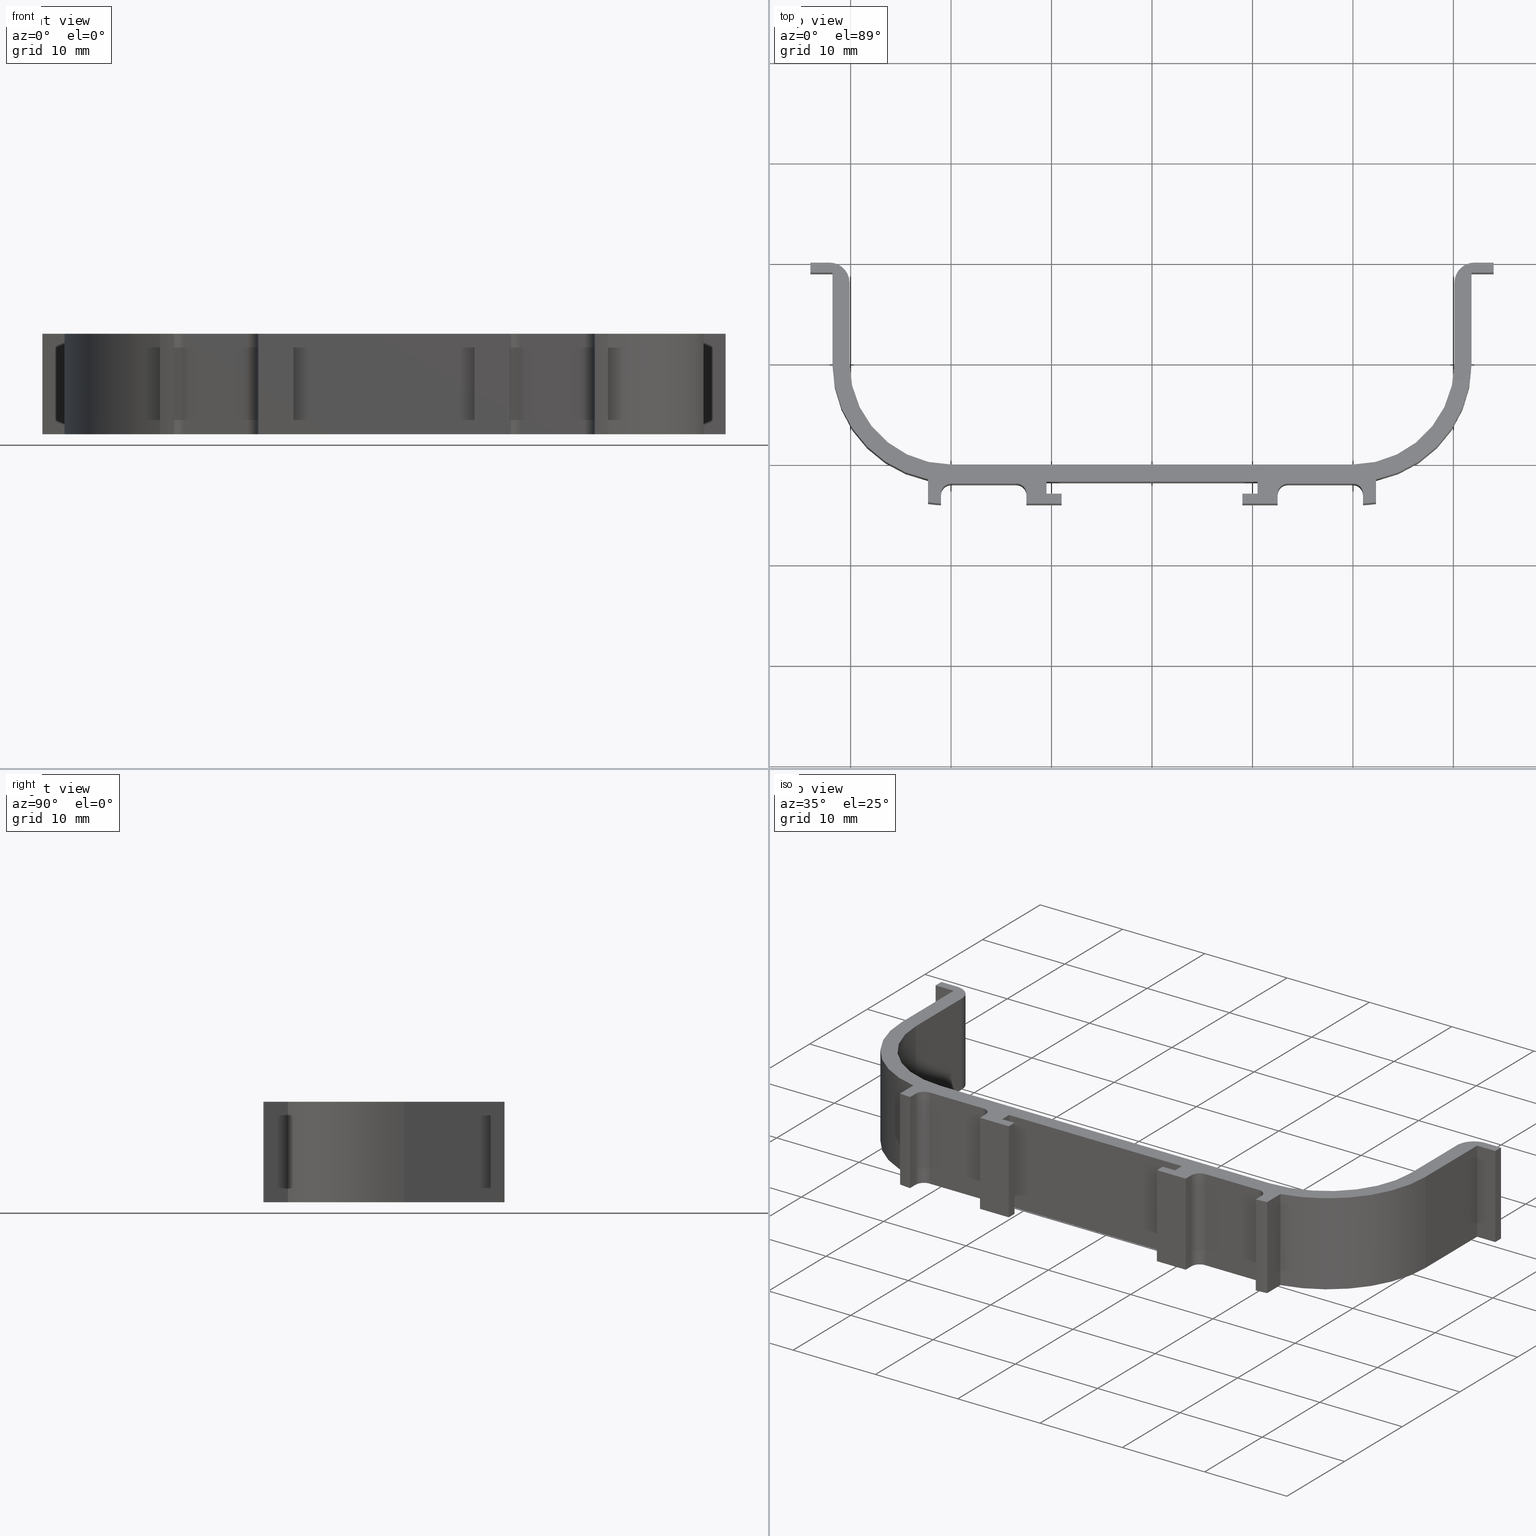
[diagram: canonical four-view strip — front | top / right | iso, engineering-drawing reading convention]
A machine part, canonical four-view strip (front | top / right | iso — engineering-drawing reading convention). The complete STEP part file that produces these views, byte-faithful:
ISO-10303-21;
HEADER;
/* Generated by software containing ST-Developer
 * from STEP Tools, Inc. (www.steptools.com) 
 */

FILE_DESCRIPTION(
/* description */ ('Griffmulde C-Form'),
/* implementation_level */ '2;1');

FILE_NAME(
/* name */ 'C:\\Users\\selema\\Desktop\\901013.stp',
/* time_stamp */ '2020-08-24T10:31:12+02:00',
/* author */ ('selema'),
/* organization */ (''),
/* preprocessor_version */ 'ST-DEVELOPER v15.6',
/* originating_system */ 'Autodesk Inventor 2015',
/* authorisation */ '');

FILE_SCHEMA (('AUTOMOTIVE_DESIGN { 1 0 10303 214 3 1 1 }'));
ENDSEC;

DATA;
#10=MECHANICAL_DESIGN_GEOMETRIC_PRESENTATION_REPRESENTATION('',(#13),#1383);
#11=SHAPE_REPRESENTATION_RELATIONSHIP('SRR','None',#1392,#12);
#12=ADVANCED_BREP_SHAPE_REPRESENTATION($,(#14),#1382);
#13=STYLED_ITEM('',(#1401),#14);
#14=MANIFOLD_SOLID_BREP('Volumenk\X\F6rper1',#839);
#15=PLANE('',#844);
#16=PLANE('',#856);
#17=PLANE('',#859);
#18=PLANE('',#860);
#19=PLANE('',#872);
#20=PLANE('',#874);
#21=PLANE('',#875);
#22=PLANE('',#876);
#23=PLANE('',#877);
#24=PLANE('',#879);
#25=PLANE('',#881);
#26=PLANE('',#882);
#27=PLANE('',#883);
#28=PLANE('',#884);
#29=PLANE('',#885);
#30=PLANE('',#887);
#31=PLANE('',#888);
#32=PLANE('',#891);
#33=PLANE('',#893);
#34=PLANE('',#894);
#35=PLANE('',#895);
#36=PLANE('',#896);
#37=PLANE('',#897);
#38=PLANE('',#899);
#39=PLANE('',#901);
#40=PLANE('',#902);
#41=PLANE('',#903);
#42=PLANE('',#904);
#43=PLANE('',#905);
#44=PLANE('',#906);
#45=FACE_OUTER_BOUND('',#87,.T.);
#46=FACE_OUTER_BOUND('',#88,.T.);
#47=FACE_OUTER_BOUND('',#89,.T.);
#48=FACE_OUTER_BOUND('',#90,.T.);
#49=FACE_OUTER_BOUND('',#91,.T.);
#50=FACE_OUTER_BOUND('',#92,.T.);
#51=FACE_OUTER_BOUND('',#93,.T.);
#52=FACE_OUTER_BOUND('',#94,.T.);
#53=FACE_OUTER_BOUND('',#95,.T.);
#54=FACE_OUTER_BOUND('',#96,.T.);
#55=FACE_OUTER_BOUND('',#97,.T.);
#56=FACE_OUTER_BOUND('',#98,.T.);
#57=FACE_OUTER_BOUND('',#99,.T.);
#58=FACE_OUTER_BOUND('',#100,.T.);
#59=FACE_OUTER_BOUND('',#101,.T.);
#60=FACE_OUTER_BOUND('',#102,.T.);
#61=FACE_OUTER_BOUND('',#103,.T.);
#62=FACE_OUTER_BOUND('',#104,.T.);
#63=FACE_OUTER_BOUND('',#105,.T.);
#64=FACE_OUTER_BOUND('',#106,.T.);
#65=FACE_OUTER_BOUND('',#107,.T.);
#66=FACE_OUTER_BOUND('',#108,.T.);
#67=FACE_OUTER_BOUND('',#109,.T.);
#68=FACE_OUTER_BOUND('',#110,.T.);
#69=FACE_OUTER_BOUND('',#111,.T.);
#70=FACE_OUTER_BOUND('',#112,.T.);
#71=FACE_OUTER_BOUND('',#113,.T.);
#72=FACE_OUTER_BOUND('',#114,.T.);
#73=FACE_OUTER_BOUND('',#115,.T.);
#74=FACE_OUTER_BOUND('',#116,.T.);
#75=FACE_OUTER_BOUND('',#117,.T.);
#76=FACE_OUTER_BOUND('',#118,.T.);
#77=FACE_OUTER_BOUND('',#119,.T.);
#78=FACE_OUTER_BOUND('',#120,.T.);
#79=FACE_OUTER_BOUND('',#121,.T.);
#80=FACE_OUTER_BOUND('',#122,.T.);
#81=FACE_OUTER_BOUND('',#123,.T.);
#82=FACE_OUTER_BOUND('',#124,.T.);
#83=FACE_OUTER_BOUND('',#125,.T.);
#84=FACE_OUTER_BOUND('',#126,.T.);
#85=FACE_OUTER_BOUND('',#127,.T.);
#86=FACE_OUTER_BOUND('',#128,.T.);
#87=EDGE_LOOP('',(#545,#546,#547,#548));
#88=EDGE_LOOP('',(#549,#550,#551,#552,#553,#554,#555,#556,#557,#558,#559,
#560,#561,#562,#563,#564,#565,#566,#567,#568,#569,#570,#571,#572,#573,#574,
#575,#576,#577,#578,#579,#580,#581,#582,#583,#584,#585,#586,#587,#588));
#89=EDGE_LOOP('',(#589,#590,#591,#592));
#90=EDGE_LOOP('',(#593,#594,#595,#596));
#91=EDGE_LOOP('',(#597,#598,#599,#600));
#92=EDGE_LOOP('',(#601,#602,#603,#604,#605,#606,#607,#608,#609,#610,#611,
#612,#613,#614,#615,#616,#617,#618,#619,#620,#621,#622,#623,#624,#625,#626,
#627,#628,#629,#630,#631,#632,#633,#634,#635,#636,#637,#638,#639,#640));
#93=EDGE_LOOP('',(#641,#642,#643,#644));
#94=EDGE_LOOP('',(#645,#646,#647,#648));
#95=EDGE_LOOP('',(#649,#650,#651,#652));
#96=EDGE_LOOP('',(#653,#654,#655,#656));
#97=EDGE_LOOP('',(#657,#658,#659,#660));
#98=EDGE_LOOP('',(#661,#662,#663,#664));
#99=EDGE_LOOP('',(#665,#666,#667,#668));
#100=EDGE_LOOP('',(#669,#670,#671,#672));
#101=EDGE_LOOP('',(#673,#674,#675,#676));
#102=EDGE_LOOP('',(#677,#678,#679,#680));
#103=EDGE_LOOP('',(#681,#682,#683,#684));
#104=EDGE_LOOP('',(#685,#686,#687,#688));
#105=EDGE_LOOP('',(#689,#690,#691,#692));
#106=EDGE_LOOP('',(#693,#694,#695,#696));
#107=EDGE_LOOP('',(#697,#698,#699,#700));
#108=EDGE_LOOP('',(#701,#702,#703,#704));
#109=EDGE_LOOP('',(#705,#706,#707,#708));
#110=EDGE_LOOP('',(#709,#710,#711,#712));
#111=EDGE_LOOP('',(#713,#714,#715,#716));
#112=EDGE_LOOP('',(#717,#718,#719,#720));
#113=EDGE_LOOP('',(#721,#722,#723,#724));
#114=EDGE_LOOP('',(#725,#726,#727,#728));
#115=EDGE_LOOP('',(#729,#730,#731,#732));
#116=EDGE_LOOP('',(#733,#734,#735,#736));
#117=EDGE_LOOP('',(#737,#738,#739,#740));
#118=EDGE_LOOP('',(#741,#742,#743,#744));
#119=EDGE_LOOP('',(#745,#746,#747,#748));
#120=EDGE_LOOP('',(#749,#750,#751,#752));
#121=EDGE_LOOP('',(#753,#754,#755,#756));
#122=EDGE_LOOP('',(#757,#758,#759,#760));
#123=EDGE_LOOP('',(#761,#762,#763,#764));
#124=EDGE_LOOP('',(#765,#766,#767,#768));
#125=EDGE_LOOP('',(#769,#770,#771,#772));
#126=EDGE_LOOP('',(#773,#774,#775,#776));
#127=EDGE_LOOP('',(#777,#778,#779,#780));
#128=EDGE_LOOP('',(#781,#782,#783,#784));
#129=LINE('',#1143,#225);
#130=LINE('',#1146,#226);
#131=LINE('',#1149,#227);
#132=LINE('',#1151,#228);
#133=LINE('',#1153,#229);
#134=LINE('',#1155,#230);
#135=LINE('',#1159,#231);
#136=LINE('',#1163,#232);
#137=LINE('',#1167,#233);
#138=LINE('',#1171,#234);
#139=LINE('',#1173,#235);
#140=LINE('',#1175,#236);
#141=LINE('',#1177,#237);
#142=LINE('',#1179,#238);
#143=LINE('',#1181,#239);
#144=LINE('',#1183,#240);
#145=LINE('',#1185,#241);
#146=LINE('',#1187,#242);
#147=LINE('',#1189,#243);
#148=LINE('',#1191,#244);
#149=LINE('',#1195,#245);
#150=LINE('',#1199,#246);
#151=LINE('',#1203,#247);
#152=LINE('',#1207,#248);
#153=LINE('',#1209,#249);
#154=LINE('',#1211,#250);
#155=LINE('',#1213,#251);
#156=LINE('',#1217,#252);
#157=LINE('',#1221,#253);
#158=LINE('',#1224,#254);
#159=LINE('',#1227,#255);
#160=LINE('',#1228,#256);
#161=LINE('',#1233,#257);
#162=LINE('',#1234,#258);
#163=LINE('',#1236,#259);
#164=LINE('',#1239,#260);
#165=LINE('',#1243,#261);
#166=LINE('',#1247,#262);
#167=LINE('',#1249,#263);
#168=LINE('',#1251,#264);
#169=LINE('',#1253,#265);
#170=LINE('',#1257,#266);
#171=LINE('',#1261,#267);
#172=LINE('',#1265,#268);
#173=LINE('',#1269,#269);
#174=LINE('',#1271,#270);
#175=LINE('',#1273,#271);
#176=LINE('',#1275,#272);
#177=LINE('',#1277,#273);
#178=LINE('',#1279,#274);
#179=LINE('',#1281,#275);
#180=LINE('',#1283,#276);
#181=LINE('',#1285,#277);
#182=LINE('',#1287,#278);
#183=LINE('',#1289,#279);
#184=LINE('',#1293,#280);
#185=LINE('',#1297,#281);
#186=LINE('',#1301,#282);
#187=LINE('',#1305,#283);
#188=LINE('',#1307,#284);
#189=LINE('',#1308,#285);
#190=LINE('',#1310,#286);
#191=LINE('',#1311,#287);
#192=LINE('',#1313,#288);
#193=LINE('',#1315,#289);
#194=LINE('',#1316,#290);
#195=LINE('',#1319,#291);
#196=LINE('',#1321,#292);
#197=LINE('',#1323,#293);
#198=LINE('',#1325,#294);
#199=LINE('',#1327,#295);
#200=LINE('',#1330,#296);
#201=LINE('',#1332,#297);
#202=LINE('',#1334,#298);
#203=LINE('',#1336,#299);
#204=LINE('',#1338,#300);
#205=LINE('',#1340,#301);
#206=LINE('',#1341,#302);
#207=LINE('',#1343,#303);
#208=LINE('',#1345,#304);
#209=LINE('',#1348,#305);
#210=LINE('',#1349,#306);
#211=LINE('',#1351,#307);
#212=LINE('',#1353,#308);
#213=LINE('',#1354,#309);
#214=LINE('',#1357,#310);
#215=LINE('',#1359,#311);
#216=LINE('',#1361,#312);
#217=LINE('',#1363,#313);
#218=LINE('',#1365,#314);
#219=LINE('',#1367,#315);
#220=LINE('',#1370,#316);
#221=LINE('',#1372,#317);
#222=LINE('',#1374,#318);
#223=LINE('',#1376,#319);
#224=LINE('',#1378,#320);
#225=VECTOR('',#913,10.);
#226=VECTOR('',#916,10.);
#227=VECTOR('',#919,1.9);
#228=VECTOR('',#920,0.999999999999999);
#229=VECTOR('',#921,2.2);
#230=VECTOR('',#922,9.);
#231=VECTOR('',#925,2.29055492974429);
#232=VECTOR('',#928,0.9895788082818);
#233=VECTOR('',#931,6.5);
#234=VECTOR('',#934,1.);
#235=VECTOR('',#935,3.5);
#236=VECTOR('',#936,1.);
#237=VECTOR('',#937,1.5);
#238=VECTOR('',#938,1.2);
#239=VECTOR('',#939,21.);
#240=VECTOR('',#940,1.2);
#241=VECTOR('',#941,1.5);
#242=VECTOR('',#942,1.);
#243=VECTOR('',#943,3.5);
#244=VECTOR('',#944,1.);
#245=VECTOR('',#947,6.5);
#246=VECTOR('',#950,0.9895788082818);
#247=VECTOR('',#953,2.29055492974429);
#248=VECTOR('',#956,9.);
#249=VECTOR('',#957,2.2);
#250=VECTOR('',#958,0.999999999999999);
#251=VECTOR('',#959,1.9);
#252=VECTOR('',#962,7.99999999999999);
#253=VECTOR('',#965,40.);
#254=VECTOR('',#968,7.99999999999999);
#255=VECTOR('',#971,1.9);
#256=VECTOR('',#972,10.);
#257=VECTOR('',#977,10.);
#258=VECTOR('',#978,10.);
#259=VECTOR('',#981,7.99999999999999);
#260=VECTOR('',#984,40.);
#261=VECTOR('',#987,7.99999999999999);
#262=VECTOR('',#990,1.9);
#263=VECTOR('',#991,0.999999999999999);
#264=VECTOR('',#992,2.2);
#265=VECTOR('',#993,9.);
#266=VECTOR('',#996,2.29055492974429);
#267=VECTOR('',#999,0.9895788082818);
#268=VECTOR('',#1002,6.5);
#269=VECTOR('',#1005,1.);
#270=VECTOR('',#1006,3.5);
#271=VECTOR('',#1007,1.);
#272=VECTOR('',#1008,1.5);
#273=VECTOR('',#1009,1.2);
#274=VECTOR('',#1010,21.);
#275=VECTOR('',#1011,1.2);
#276=VECTOR('',#1012,1.5);
#277=VECTOR('',#1013,1.);
#278=VECTOR('',#1014,3.5);
#279=VECTOR('',#1015,1.);
#280=VECTOR('',#1018,6.5);
#281=VECTOR('',#1021,0.9895788082818);
#282=VECTOR('',#1024,2.29055492974429);
#283=VECTOR('',#1027,9.);
#284=VECTOR('',#1028,2.2);
#285=VECTOR('',#1029,0.999999999999999);
#286=VECTOR('',#1032,10.);
#287=VECTOR('',#1033,10.);
#288=VECTOR('',#1036,10.);
#289=VECTOR('',#1039,10.);
#290=VECTOR('',#1040,10.);
#291=VECTOR('',#1045,10.);
#292=VECTOR('',#1048,10.);
#293=VECTOR('',#1051,10.);
#294=VECTOR('',#1054,10.);
#295=VECTOR('',#1057,10.);
#296=VECTOR('',#1062,10.);
#297=VECTOR('',#1065,10.);
#298=VECTOR('',#1068,10.);
#299=VECTOR('',#1071,10.);
#300=VECTOR('',#1074,10.);
#301=VECTOR('',#1077,10.);
#302=VECTOR('',#1078,10.);
#303=VECTOR('',#1081,10.);
#304=VECTOR('',#1084,10.);
#305=VECTOR('',#1089,10.);
#306=VECTOR('',#1090,10.);
#307=VECTOR('',#1093,10.);
#308=VECTOR('',#1096,10.);
#309=VECTOR('',#1097,10.);
#310=VECTOR('',#1102,10.);
#311=VECTOR('',#1105,10.);
#312=VECTOR('',#1108,10.);
#313=VECTOR('',#1111,10.);
#314=VECTOR('',#1114,10.);
#315=VECTOR('',#1117,10.);
#316=VECTOR('',#1122,10.);
#317=VECTOR('',#1125,10.);
#318=VECTOR('',#1128,10.);
#319=VECTOR('',#1131,10.);
#320=VECTOR('',#1134,10.);
#321=CIRCLE('',#842,2.);
#322=CIRCLE('',#843,2.);
#323=CIRCLE('',#845,11.8);
#324=CIRCLE('',#846,11.9999999999985);
#325=CIRCLE('',#847,1.);
#326=CIRCLE('',#848,1.);
#327=CIRCLE('',#849,1.);
#328=CIRCLE('',#850,1.);
#329=CIRCLE('',#851,11.9999999999985);
#330=CIRCLE('',#852,11.8);
#331=CIRCLE('',#853,2.);
#332=CIRCLE('',#854,10.1);
#333=CIRCLE('',#855,10.1);
#334=CIRCLE('',#858,10.1);
#335=CIRCLE('',#861,10.1);
#336=CIRCLE('',#862,2.);
#337=CIRCLE('',#863,11.8);
#338=CIRCLE('',#864,11.9999999999985);
#339=CIRCLE('',#865,1.);
#340=CIRCLE('',#866,1.);
#341=CIRCLE('',#867,1.);
#342=CIRCLE('',#868,1.);
#343=CIRCLE('',#869,11.9999999999985);
#344=CIRCLE('',#870,11.8);
#345=VERTEX_POINT('',#1139);
#346=VERTEX_POINT('',#1140);
#347=VERTEX_POINT('',#1142);
#348=VERTEX_POINT('',#1144);
#349=VERTEX_POINT('',#1148);
#350=VERTEX_POINT('',#1150);
#351=VERTEX_POINT('',#1152);
#352=VERTEX_POINT('',#1154);
#353=VERTEX_POINT('',#1156);
#354=VERTEX_POINT('',#1158);
#355=VERTEX_POINT('',#1160);
#356=VERTEX_POINT('',#1162);
#357=VERTEX_POINT('',#1164);
#358=VERTEX_POINT('',#1166);
#359=VERTEX_POINT('',#1168);
#360=VERTEX_POINT('',#1170);
#361=VERTEX_POINT('',#1172);
#362=VERTEX_POINT('',#1174);
#363=VERTEX_POINT('',#1176);
#364=VERTEX_POINT('',#1178);
#365=VERTEX_POINT('',#1180);
#366=VERTEX_POINT('',#1182);
#367=VERTEX_POINT('',#1184);
#368=VERTEX_POINT('',#1186);
#369=VERTEX_POINT('',#1188);
#370=VERTEX_POINT('',#1190);
#371=VERTEX_POINT('',#1192);
#372=VERTEX_POINT('',#1194);
#373=VERTEX_POINT('',#1196);
#374=VERTEX_POINT('',#1198);
#375=VERTEX_POINT('',#1200);
#376=VERTEX_POINT('',#1202);
#377=VERTEX_POINT('',#1204);
#378=VERTEX_POINT('',#1206);
#379=VERTEX_POINT('',#1208);
#380=VERTEX_POINT('',#1210);
#381=VERTEX_POINT('',#1212);
#382=VERTEX_POINT('',#1214);
#383=VERTEX_POINT('',#1216);
#384=VERTEX_POINT('',#1218);
#385=VERTEX_POINT('',#1220);
#386=VERTEX_POINT('',#1222);
#387=VERTEX_POINT('',#1226);
#388=VERTEX_POINT('',#1230);
#389=VERTEX_POINT('',#1231);
#390=VERTEX_POINT('',#1238);
#391=VERTEX_POINT('',#1240);
#392=VERTEX_POINT('',#1242);
#393=VERTEX_POINT('',#1244);
#394=VERTEX_POINT('',#1246);
#395=VERTEX_POINT('',#1248);
#396=VERTEX_POINT('',#1250);
#397=VERTEX_POINT('',#1252);
#398=VERTEX_POINT('',#1254);
#399=VERTEX_POINT('',#1256);
#400=VERTEX_POINT('',#1258);
#401=VERTEX_POINT('',#1260);
#402=VERTEX_POINT('',#1262);
#403=VERTEX_POINT('',#1264);
#404=VERTEX_POINT('',#1266);
#405=VERTEX_POINT('',#1268);
#406=VERTEX_POINT('',#1270);
#407=VERTEX_POINT('',#1272);
#408=VERTEX_POINT('',#1274);
#409=VERTEX_POINT('',#1276);
#410=VERTEX_POINT('',#1278);
#411=VERTEX_POINT('',#1280);
#412=VERTEX_POINT('',#1282);
#413=VERTEX_POINT('',#1284);
#414=VERTEX_POINT('',#1286);
#415=VERTEX_POINT('',#1288);
#416=VERTEX_POINT('',#1290);
#417=VERTEX_POINT('',#1292);
#418=VERTEX_POINT('',#1294);
#419=VERTEX_POINT('',#1296);
#420=VERTEX_POINT('',#1298);
#421=VERTEX_POINT('',#1300);
#422=VERTEX_POINT('',#1302);
#423=VERTEX_POINT('',#1304);
#424=VERTEX_POINT('',#1306);
#425=EDGE_CURVE('',#345,#346,#321,.T.);
#426=EDGE_CURVE('',#346,#347,#129,.T.);
#427=EDGE_CURVE('',#347,#348,#322,.T.);
#428=EDGE_CURVE('',#348,#345,#130,.T.);
#429=EDGE_CURVE('',#347,#349,#131,.T.);
#430=EDGE_CURVE('',#349,#350,#132,.T.);
#431=EDGE_CURVE('',#350,#351,#133,.T.);
#432=EDGE_CURVE('',#351,#352,#134,.T.);
#433=EDGE_CURVE('',#352,#353,#323,.T.);
#434=EDGE_CURVE('',#353,#354,#135,.T.);
#435=EDGE_CURVE('',#354,#355,#324,.T.);
#436=EDGE_CURVE('',#355,#356,#136,.T.);
#437=EDGE_CURVE('',#356,#357,#325,.T.);
#438=EDGE_CURVE('',#357,#358,#137,.T.);
#439=EDGE_CURVE('',#358,#359,#326,.T.);
#440=EDGE_CURVE('',#359,#360,#138,.T.);
#441=EDGE_CURVE('',#360,#361,#139,.T.);
#442=EDGE_CURVE('',#361,#362,#140,.T.);
#443=EDGE_CURVE('',#362,#363,#141,.T.);
#444=EDGE_CURVE('',#363,#364,#142,.T.);
#445=EDGE_CURVE('',#364,#365,#143,.T.);
#446=EDGE_CURVE('',#366,#365,#144,.T.);
#447=EDGE_CURVE('',#367,#366,#145,.T.);
#448=EDGE_CURVE('',#368,#367,#146,.T.);
#449=EDGE_CURVE('',#369,#368,#147,.T.);
#450=EDGE_CURVE('',#370,#369,#148,.T.);
#451=EDGE_CURVE('',#371,#370,#327,.T.);
#452=EDGE_CURVE('',#372,#371,#149,.T.);
#453=EDGE_CURVE('',#373,#372,#328,.T.);
#454=EDGE_CURVE('',#374,#373,#150,.T.);
#455=EDGE_CURVE('',#375,#374,#329,.T.);
#456=EDGE_CURVE('',#376,#375,#151,.T.);
#457=EDGE_CURVE('',#377,#376,#330,.T.);
#458=EDGE_CURVE('',#378,#377,#152,.T.);
#459=EDGE_CURVE('',#379,#378,#153,.T.);
#460=EDGE_CURVE('',#380,#379,#154,.T.);
#461=EDGE_CURVE('',#381,#380,#155,.T.);
#462=EDGE_CURVE('',#382,#381,#331,.T.);
#463=EDGE_CURVE('',#382,#383,#156,.T.);
#464=EDGE_CURVE('',#383,#384,#332,.T.);
#465=EDGE_CURVE('',#384,#385,#157,.T.);
#466=EDGE_CURVE('',#385,#386,#333,.T.);
#467=EDGE_CURVE('',#386,#348,#158,.T.);
#468=EDGE_CURVE('',#387,#346,#159,.T.);
#469=EDGE_CURVE('',#387,#349,#160,.T.);
#470=EDGE_CURVE('',#388,#389,#334,.T.);
#471=EDGE_CURVE('',#386,#388,#161,.T.);
#472=EDGE_CURVE('',#385,#389,#162,.T.);
#473=EDGE_CURVE('',#345,#388,#163,.T.);
#474=EDGE_CURVE('',#389,#390,#164,.T.);
#475=EDGE_CURVE('',#390,#391,#335,.T.);
#476=EDGE_CURVE('',#391,#392,#165,.T.);
#477=EDGE_CURVE('',#393,#392,#336,.T.);
#478=EDGE_CURVE('',#394,#393,#166,.T.);
#479=EDGE_CURVE('',#395,#394,#167,.T.);
#480=EDGE_CURVE('',#396,#395,#168,.T.);
#481=EDGE_CURVE('',#397,#396,#169,.T.);
#482=EDGE_CURVE('',#398,#397,#337,.T.);
#483=EDGE_CURVE('',#399,#398,#170,.T.);
#484=EDGE_CURVE('',#400,#399,#338,.T.);
#485=EDGE_CURVE('',#401,#400,#171,.T.);
#486=EDGE_CURVE('',#402,#401,#339,.T.);
#487=EDGE_CURVE('',#403,#402,#172,.T.);
#488=EDGE_CURVE('',#404,#403,#340,.T.);
#489=EDGE_CURVE('',#405,#404,#173,.T.);
#490=EDGE_CURVE('',#406,#405,#174,.T.);
#491=EDGE_CURVE('',#407,#406,#175,.T.);
#492=EDGE_CURVE('',#408,#407,#176,.T.);
#493=EDGE_CURVE('',#409,#408,#177,.T.);
#494=EDGE_CURVE('',#410,#409,#178,.T.);
#495=EDGE_CURVE('',#410,#411,#179,.T.);
#496=EDGE_CURVE('',#411,#412,#180,.T.);
#497=EDGE_CURVE('',#412,#413,#181,.T.);
#498=EDGE_CURVE('',#413,#414,#182,.T.);
#499=EDGE_CURVE('',#414,#415,#183,.T.);
#500=EDGE_CURVE('',#415,#416,#341,.T.);
#501=EDGE_CURVE('',#416,#417,#184,.T.);
#502=EDGE_CURVE('',#417,#418,#342,.T.);
#503=EDGE_CURVE('',#418,#419,#185,.T.);
#504=EDGE_CURVE('',#419,#420,#343,.T.);
#505=EDGE_CURVE('',#420,#421,#186,.T.);
#506=EDGE_CURVE('',#421,#422,#344,.T.);
#507=EDGE_CURVE('',#422,#423,#187,.T.);
#508=EDGE_CURVE('',#423,#424,#188,.T.);
#509=EDGE_CURVE('',#424,#387,#189,.T.);
#510=EDGE_CURVE('',#357,#417,#190,.T.);
#511=EDGE_CURVE('',#418,#356,#191,.T.);
#512=EDGE_CURVE('',#419,#355,#192,.T.);
#513=EDGE_CURVE('',#359,#415,#193,.T.);
#514=EDGE_CURVE('',#416,#358,#194,.T.);
#515=EDGE_CURVE('',#424,#350,#195,.T.);
#516=EDGE_CURVE('',#423,#351,#196,.T.);
#517=EDGE_CURVE('',#422,#352,#197,.T.);
#518=EDGE_CURVE('',#421,#353,#198,.T.);
#519=EDGE_CURVE('',#420,#354,#199,.T.);
#520=EDGE_CURVE('',#414,#360,#200,.T.);
#521=EDGE_CURVE('',#413,#361,#201,.T.);
#522=EDGE_CURVE('',#412,#362,#202,.T.);
#523=EDGE_CURVE('',#411,#363,#203,.T.);
#524=EDGE_CURVE('',#410,#364,#204,.T.);
#525=EDGE_CURVE('',#381,#393,#205,.T.);
#526=EDGE_CURVE('',#392,#382,#206,.T.);
#527=EDGE_CURVE('',#383,#391,#207,.T.);
#528=EDGE_CURVE('',#384,#390,#208,.T.);
#529=EDGE_CURVE('',#401,#373,#209,.T.);
#530=EDGE_CURVE('',#372,#402,#210,.T.);
#531=EDGE_CURVE('',#400,#374,#211,.T.);
#532=EDGE_CURVE('',#403,#371,#212,.T.);
#533=EDGE_CURVE('',#370,#404,#213,.T.);
#534=EDGE_CURVE('',#394,#380,#214,.T.);
#535=EDGE_CURVE('',#395,#379,#215,.T.);
#536=EDGE_CURVE('',#396,#378,#216,.T.);
#537=EDGE_CURVE('',#397,#377,#217,.T.);
#538=EDGE_CURVE('',#398,#376,#218,.T.);
#539=EDGE_CURVE('',#399,#375,#219,.T.);
#540=EDGE_CURVE('',#405,#369,#220,.T.);
#541=EDGE_CURVE('',#406,#368,#221,.T.);
#542=EDGE_CURVE('',#407,#367,#222,.T.);
#543=EDGE_CURVE('',#408,#366,#223,.T.);
#544=EDGE_CURVE('',#409,#365,#224,.T.);
#545=ORIENTED_EDGE('',*,*,#425,.T.);
#546=ORIENTED_EDGE('',*,*,#426,.T.);
#547=ORIENTED_EDGE('',*,*,#427,.T.);
#548=ORIENTED_EDGE('',*,*,#428,.T.);
#549=ORIENTED_EDGE('',*,*,#427,.F.);
#550=ORIENTED_EDGE('',*,*,#429,.T.);
#551=ORIENTED_EDGE('',*,*,#430,.T.);
#552=ORIENTED_EDGE('',*,*,#431,.T.);
#553=ORIENTED_EDGE('',*,*,#432,.T.);
#554=ORIENTED_EDGE('',*,*,#433,.T.);
#555=ORIENTED_EDGE('',*,*,#434,.T.);
#556=ORIENTED_EDGE('',*,*,#435,.T.);
#557=ORIENTED_EDGE('',*,*,#436,.T.);
#558=ORIENTED_EDGE('',*,*,#437,.T.);
#559=ORIENTED_EDGE('',*,*,#438,.T.);
#560=ORIENTED_EDGE('',*,*,#439,.T.);
#561=ORIENTED_EDGE('',*,*,#440,.T.);
#562=ORIENTED_EDGE('',*,*,#441,.T.);
#563=ORIENTED_EDGE('',*,*,#442,.T.);
#564=ORIENTED_EDGE('',*,*,#443,.T.);
#565=ORIENTED_EDGE('',*,*,#444,.T.);
#566=ORIENTED_EDGE('',*,*,#445,.T.);
#567=ORIENTED_EDGE('',*,*,#446,.F.);
#568=ORIENTED_EDGE('',*,*,#447,.F.);
#569=ORIENTED_EDGE('',*,*,#448,.F.);
#570=ORIENTED_EDGE('',*,*,#449,.F.);
#571=ORIENTED_EDGE('',*,*,#450,.F.);
#572=ORIENTED_EDGE('',*,*,#451,.F.);
#573=ORIENTED_EDGE('',*,*,#452,.F.);
#574=ORIENTED_EDGE('',*,*,#453,.F.);
#575=ORIENTED_EDGE('',*,*,#454,.F.);
#576=ORIENTED_EDGE('',*,*,#455,.F.);
#577=ORIENTED_EDGE('',*,*,#456,.F.);
#578=ORIENTED_EDGE('',*,*,#457,.F.);
#579=ORIENTED_EDGE('',*,*,#458,.F.);
#580=ORIENTED_EDGE('',*,*,#459,.F.);
#581=ORIENTED_EDGE('',*,*,#460,.F.);
#582=ORIENTED_EDGE('',*,*,#461,.F.);
#583=ORIENTED_EDGE('',*,*,#462,.F.);
#584=ORIENTED_EDGE('',*,*,#463,.T.);
#585=ORIENTED_EDGE('',*,*,#464,.T.);
#586=ORIENTED_EDGE('',*,*,#465,.T.);
#587=ORIENTED_EDGE('',*,*,#466,.T.);
#588=ORIENTED_EDGE('',*,*,#467,.T.);
#589=ORIENTED_EDGE('',*,*,#426,.F.);
#590=ORIENTED_EDGE('',*,*,#468,.F.);
#591=ORIENTED_EDGE('',*,*,#469,.T.);
#592=ORIENTED_EDGE('',*,*,#429,.F.);
#593=ORIENTED_EDGE('',*,*,#470,.F.);
#594=ORIENTED_EDGE('',*,*,#471,.F.);
#595=ORIENTED_EDGE('',*,*,#466,.F.);
#596=ORIENTED_EDGE('',*,*,#472,.T.);
#597=ORIENTED_EDGE('',*,*,#428,.F.);
#598=ORIENTED_EDGE('',*,*,#467,.F.);
#599=ORIENTED_EDGE('',*,*,#471,.T.);
#600=ORIENTED_EDGE('',*,*,#473,.F.);
#601=ORIENTED_EDGE('',*,*,#425,.F.);
#602=ORIENTED_EDGE('',*,*,#473,.T.);
#603=ORIENTED_EDGE('',*,*,#470,.T.);
#604=ORIENTED_EDGE('',*,*,#474,.T.);
#605=ORIENTED_EDGE('',*,*,#475,.T.);
#606=ORIENTED_EDGE('',*,*,#476,.T.);
#607=ORIENTED_EDGE('',*,*,#477,.F.);
#608=ORIENTED_EDGE('',*,*,#478,.F.);
#609=ORIENTED_EDGE('',*,*,#479,.F.);
#610=ORIENTED_EDGE('',*,*,#480,.F.);
#611=ORIENTED_EDGE('',*,*,#481,.F.);
#612=ORIENTED_EDGE('',*,*,#482,.F.);
#613=ORIENTED_EDGE('',*,*,#483,.F.);
#614=ORIENTED_EDGE('',*,*,#484,.F.);
#615=ORIENTED_EDGE('',*,*,#485,.F.);
#616=ORIENTED_EDGE('',*,*,#486,.F.);
#617=ORIENTED_EDGE('',*,*,#487,.F.);
#618=ORIENTED_EDGE('',*,*,#488,.F.);
#619=ORIENTED_EDGE('',*,*,#489,.F.);
#620=ORIENTED_EDGE('',*,*,#490,.F.);
#621=ORIENTED_EDGE('',*,*,#491,.F.);
#622=ORIENTED_EDGE('',*,*,#492,.F.);
#623=ORIENTED_EDGE('',*,*,#493,.F.);
#624=ORIENTED_EDGE('',*,*,#494,.F.);
#625=ORIENTED_EDGE('',*,*,#495,.T.);
#626=ORIENTED_EDGE('',*,*,#496,.T.);
#627=ORIENTED_EDGE('',*,*,#497,.T.);
#628=ORIENTED_EDGE('',*,*,#498,.T.);
#629=ORIENTED_EDGE('',*,*,#499,.T.);
#630=ORIENTED_EDGE('',*,*,#500,.T.);
#631=ORIENTED_EDGE('',*,*,#501,.T.);
#632=ORIENTED_EDGE('',*,*,#502,.T.);
#633=ORIENTED_EDGE('',*,*,#503,.T.);
#634=ORIENTED_EDGE('',*,*,#504,.T.);
#635=ORIENTED_EDGE('',*,*,#505,.T.);
#636=ORIENTED_EDGE('',*,*,#506,.T.);
#637=ORIENTED_EDGE('',*,*,#507,.T.);
#638=ORIENTED_EDGE('',*,*,#508,.T.);
#639=ORIENTED_EDGE('',*,*,#509,.T.);
#640=ORIENTED_EDGE('',*,*,#468,.T.);
#641=ORIENTED_EDGE('',*,*,#502,.F.);
#642=ORIENTED_EDGE('',*,*,#510,.F.);
#643=ORIENTED_EDGE('',*,*,#437,.F.);
#644=ORIENTED_EDGE('',*,*,#511,.F.);
#645=ORIENTED_EDGE('',*,*,#511,.T.);
#646=ORIENTED_EDGE('',*,*,#436,.F.);
#647=ORIENTED_EDGE('',*,*,#512,.F.);
#648=ORIENTED_EDGE('',*,*,#503,.F.);
#649=ORIENTED_EDGE('',*,*,#500,.F.);
#650=ORIENTED_EDGE('',*,*,#513,.F.);
#651=ORIENTED_EDGE('',*,*,#439,.F.);
#652=ORIENTED_EDGE('',*,*,#514,.F.);
#653=ORIENTED_EDGE('',*,*,#510,.T.);
#654=ORIENTED_EDGE('',*,*,#501,.F.);
#655=ORIENTED_EDGE('',*,*,#514,.T.);
#656=ORIENTED_EDGE('',*,*,#438,.F.);
#657=ORIENTED_EDGE('',*,*,#430,.F.);
#658=ORIENTED_EDGE('',*,*,#469,.F.);
#659=ORIENTED_EDGE('',*,*,#509,.F.);
#660=ORIENTED_EDGE('',*,*,#515,.T.);
#661=ORIENTED_EDGE('',*,*,#431,.F.);
#662=ORIENTED_EDGE('',*,*,#515,.F.);
#663=ORIENTED_EDGE('',*,*,#508,.F.);
#664=ORIENTED_EDGE('',*,*,#516,.T.);
#665=ORIENTED_EDGE('',*,*,#432,.F.);
#666=ORIENTED_EDGE('',*,*,#516,.F.);
#667=ORIENTED_EDGE('',*,*,#507,.F.);
#668=ORIENTED_EDGE('',*,*,#517,.T.);
#669=ORIENTED_EDGE('',*,*,#433,.F.);
#670=ORIENTED_EDGE('',*,*,#517,.F.);
#671=ORIENTED_EDGE('',*,*,#506,.F.);
#672=ORIENTED_EDGE('',*,*,#518,.T.);
#673=ORIENTED_EDGE('',*,*,#434,.F.);
#674=ORIENTED_EDGE('',*,*,#518,.F.);
#675=ORIENTED_EDGE('',*,*,#505,.F.);
#676=ORIENTED_EDGE('',*,*,#519,.T.);
#677=ORIENTED_EDGE('',*,*,#435,.F.);
#678=ORIENTED_EDGE('',*,*,#519,.F.);
#679=ORIENTED_EDGE('',*,*,#504,.F.);
#680=ORIENTED_EDGE('',*,*,#512,.T.);
#681=ORIENTED_EDGE('',*,*,#513,.T.);
#682=ORIENTED_EDGE('',*,*,#499,.F.);
#683=ORIENTED_EDGE('',*,*,#520,.T.);
#684=ORIENTED_EDGE('',*,*,#440,.F.);
#685=ORIENTED_EDGE('',*,*,#441,.F.);
#686=ORIENTED_EDGE('',*,*,#520,.F.);
#687=ORIENTED_EDGE('',*,*,#498,.F.);
#688=ORIENTED_EDGE('',*,*,#521,.T.);
#689=ORIENTED_EDGE('',*,*,#442,.F.);
#690=ORIENTED_EDGE('',*,*,#521,.F.);
#691=ORIENTED_EDGE('',*,*,#497,.F.);
#692=ORIENTED_EDGE('',*,*,#522,.T.);
#693=ORIENTED_EDGE('',*,*,#443,.F.);
#694=ORIENTED_EDGE('',*,*,#522,.F.);
#695=ORIENTED_EDGE('',*,*,#496,.F.);
#696=ORIENTED_EDGE('',*,*,#523,.T.);
#697=ORIENTED_EDGE('',*,*,#444,.F.);
#698=ORIENTED_EDGE('',*,*,#523,.F.);
#699=ORIENTED_EDGE('',*,*,#495,.F.);
#700=ORIENTED_EDGE('',*,*,#524,.T.);
#701=ORIENTED_EDGE('',*,*,#462,.T.);
#702=ORIENTED_EDGE('',*,*,#525,.T.);
#703=ORIENTED_EDGE('',*,*,#477,.T.);
#704=ORIENTED_EDGE('',*,*,#526,.T.);
#705=ORIENTED_EDGE('',*,*,#526,.F.);
#706=ORIENTED_EDGE('',*,*,#476,.F.);
#707=ORIENTED_EDGE('',*,*,#527,.F.);
#708=ORIENTED_EDGE('',*,*,#463,.F.);
#709=ORIENTED_EDGE('',*,*,#474,.F.);
#710=ORIENTED_EDGE('',*,*,#472,.F.);
#711=ORIENTED_EDGE('',*,*,#465,.F.);
#712=ORIENTED_EDGE('',*,*,#528,.T.);
#713=ORIENTED_EDGE('',*,*,#475,.F.);
#714=ORIENTED_EDGE('',*,*,#528,.F.);
#715=ORIENTED_EDGE('',*,*,#464,.F.);
#716=ORIENTED_EDGE('',*,*,#527,.T.);
#717=ORIENTED_EDGE('',*,*,#486,.T.);
#718=ORIENTED_EDGE('',*,*,#529,.T.);
#719=ORIENTED_EDGE('',*,*,#453,.T.);
#720=ORIENTED_EDGE('',*,*,#530,.T.);
#721=ORIENTED_EDGE('',*,*,#529,.F.);
#722=ORIENTED_EDGE('',*,*,#485,.T.);
#723=ORIENTED_EDGE('',*,*,#531,.T.);
#724=ORIENTED_EDGE('',*,*,#454,.T.);
#725=ORIENTED_EDGE('',*,*,#488,.T.);
#726=ORIENTED_EDGE('',*,*,#532,.T.);
#727=ORIENTED_EDGE('',*,*,#451,.T.);
#728=ORIENTED_EDGE('',*,*,#533,.T.);
#729=ORIENTED_EDGE('',*,*,#530,.F.);
#730=ORIENTED_EDGE('',*,*,#452,.T.);
#731=ORIENTED_EDGE('',*,*,#532,.F.);
#732=ORIENTED_EDGE('',*,*,#487,.T.);
#733=ORIENTED_EDGE('',*,*,#525,.F.);
#734=ORIENTED_EDGE('',*,*,#461,.T.);
#735=ORIENTED_EDGE('',*,*,#534,.F.);
#736=ORIENTED_EDGE('',*,*,#478,.T.);
#737=ORIENTED_EDGE('',*,*,#460,.T.);
#738=ORIENTED_EDGE('',*,*,#535,.F.);
#739=ORIENTED_EDGE('',*,*,#479,.T.);
#740=ORIENTED_EDGE('',*,*,#534,.T.);
#741=ORIENTED_EDGE('',*,*,#459,.T.);
#742=ORIENTED_EDGE('',*,*,#536,.F.);
#743=ORIENTED_EDGE('',*,*,#480,.T.);
#744=ORIENTED_EDGE('',*,*,#535,.T.);
#745=ORIENTED_EDGE('',*,*,#458,.T.);
#746=ORIENTED_EDGE('',*,*,#537,.F.);
#747=ORIENTED_EDGE('',*,*,#481,.T.);
#748=ORIENTED_EDGE('',*,*,#536,.T.);
#749=ORIENTED_EDGE('',*,*,#457,.T.);
#750=ORIENTED_EDGE('',*,*,#538,.F.);
#751=ORIENTED_EDGE('',*,*,#482,.T.);
#752=ORIENTED_EDGE('',*,*,#537,.T.);
#753=ORIENTED_EDGE('',*,*,#456,.T.);
#754=ORIENTED_EDGE('',*,*,#539,.F.);
#755=ORIENTED_EDGE('',*,*,#483,.T.);
#756=ORIENTED_EDGE('',*,*,#538,.T.);
#757=ORIENTED_EDGE('',*,*,#455,.T.);
#758=ORIENTED_EDGE('',*,*,#531,.F.);
#759=ORIENTED_EDGE('',*,*,#484,.T.);
#760=ORIENTED_EDGE('',*,*,#539,.T.);
#761=ORIENTED_EDGE('',*,*,#533,.F.);
#762=ORIENTED_EDGE('',*,*,#450,.T.);
#763=ORIENTED_EDGE('',*,*,#540,.F.);
#764=ORIENTED_EDGE('',*,*,#489,.T.);
#765=ORIENTED_EDGE('',*,*,#449,.T.);
#766=ORIENTED_EDGE('',*,*,#541,.F.);
#767=ORIENTED_EDGE('',*,*,#490,.T.);
#768=ORIENTED_EDGE('',*,*,#540,.T.);
#769=ORIENTED_EDGE('',*,*,#448,.T.);
#770=ORIENTED_EDGE('',*,*,#542,.F.);
#771=ORIENTED_EDGE('',*,*,#491,.T.);
#772=ORIENTED_EDGE('',*,*,#541,.T.);
#773=ORIENTED_EDGE('',*,*,#447,.T.);
#774=ORIENTED_EDGE('',*,*,#543,.F.);
#775=ORIENTED_EDGE('',*,*,#492,.T.);
#776=ORIENTED_EDGE('',*,*,#542,.T.);
#777=ORIENTED_EDGE('',*,*,#446,.T.);
#778=ORIENTED_EDGE('',*,*,#544,.F.);
#779=ORIENTED_EDGE('',*,*,#493,.T.);
#780=ORIENTED_EDGE('',*,*,#543,.T.);
#781=ORIENTED_EDGE('',*,*,#445,.F.);
#782=ORIENTED_EDGE('',*,*,#524,.F.);
#783=ORIENTED_EDGE('',*,*,#494,.T.);
#784=ORIENTED_EDGE('',*,*,#544,.T.);
#785=CYLINDRICAL_SURFACE('',#841,2.);
#786=CYLINDRICAL_SURFACE('',#857,10.1);
#787=CYLINDRICAL_SURFACE('',#871,1.);
#788=CYLINDRICAL_SURFACE('',#873,1.);
#789=CYLINDRICAL_SURFACE('',#878,11.8);
#790=CYLINDRICAL_SURFACE('',#880,11.9999999999985);
#791=CYLINDRICAL_SURFACE('',#886,2.);
#792=CYLINDRICAL_SURFACE('',#889,10.1);
#793=CYLINDRICAL_SURFACE('',#890,1.);
#794=CYLINDRICAL_SURFACE('',#892,1.);
#795=CYLINDRICAL_SURFACE('',#898,11.8);
#796=CYLINDRICAL_SURFACE('',#900,11.9999999999985);
#797=ADVANCED_FACE('',(#45),#785,.T.);
#798=ADVANCED_FACE('',(#46),#15,.T.);
#799=ADVANCED_FACE('',(#47),#16,.F.);
#800=ADVANCED_FACE('',(#48),#786,.F.);
#801=ADVANCED_FACE('',(#49),#17,.T.);
#802=ADVANCED_FACE('',(#50),#18,.F.);
#803=ADVANCED_FACE('',(#51),#787,.F.);
#804=ADVANCED_FACE('',(#52),#19,.F.);
#805=ADVANCED_FACE('',(#53),#788,.F.);
#806=ADVANCED_FACE('',(#54),#20,.F.);
#807=ADVANCED_FACE('',(#55),#21,.F.);
#808=ADVANCED_FACE('',(#56),#22,.F.);
#809=ADVANCED_FACE('',(#57),#23,.F.);
#810=ADVANCED_FACE('',(#58),#789,.T.);
#811=ADVANCED_FACE('',(#59),#24,.F.);
#812=ADVANCED_FACE('',(#60),#790,.T.);
#813=ADVANCED_FACE('',(#61),#25,.F.);
#814=ADVANCED_FACE('',(#62),#26,.F.);
#815=ADVANCED_FACE('',(#63),#27,.F.);
#816=ADVANCED_FACE('',(#64),#28,.F.);
#817=ADVANCED_FACE('',(#65),#29,.F.);
#818=ADVANCED_FACE('',(#66),#791,.T.);
#819=ADVANCED_FACE('',(#67),#30,.F.);
#820=ADVANCED_FACE('',(#68),#31,.F.);
#821=ADVANCED_FACE('',(#69),#792,.F.);
#822=ADVANCED_FACE('',(#70),#793,.F.);
#823=ADVANCED_FACE('',(#71),#32,.T.);
#824=ADVANCED_FACE('',(#72),#794,.F.);
#825=ADVANCED_FACE('',(#73),#33,.T.);
#826=ADVANCED_FACE('',(#74),#34,.T.);
#827=ADVANCED_FACE('',(#75),#35,.T.);
#828=ADVANCED_FACE('',(#76),#36,.T.);
#829=ADVANCED_FACE('',(#77),#37,.T.);
#830=ADVANCED_FACE('',(#78),#795,.T.);
#831=ADVANCED_FACE('',(#79),#38,.T.);
#832=ADVANCED_FACE('',(#80),#796,.T.);
#833=ADVANCED_FACE('',(#81),#39,.T.);
#834=ADVANCED_FACE('',(#82),#40,.T.);
#835=ADVANCED_FACE('',(#83),#41,.T.);
#836=ADVANCED_FACE('',(#84),#42,.T.);
#837=ADVANCED_FACE('',(#85),#43,.T.);
#838=ADVANCED_FACE('',(#86),#44,.T.);
#839=CLOSED_SHELL('',(#797,#798,#799,#800,#801,#802,#803,#804,#805,#806,
#807,#808,#809,#810,#811,#812,#813,#814,#815,#816,#817,#818,#819,#820,#821,
#822,#823,#824,#825,#826,#827,#828,#829,#830,#831,#832,#833,#834,#835,#836,
#837,#838));
#840=AXIS2_PLACEMENT_3D('placement',#1137,#907,#908);
#841=AXIS2_PLACEMENT_3D('',#1138,#909,#910);
#842=AXIS2_PLACEMENT_3D('',#1141,#911,#912);
#843=AXIS2_PLACEMENT_3D('',#1145,#914,#915);
#844=AXIS2_PLACEMENT_3D('',#1147,#917,#918);
#845=AXIS2_PLACEMENT_3D('',#1157,#923,#924);
#846=AXIS2_PLACEMENT_3D('',#1161,#926,#927);
#847=AXIS2_PLACEMENT_3D('',#1165,#929,#930);
#848=AXIS2_PLACEMENT_3D('',#1169,#932,#933);
#849=AXIS2_PLACEMENT_3D('',#1193,#945,#946);
#850=AXIS2_PLACEMENT_3D('',#1197,#948,#949);
#851=AXIS2_PLACEMENT_3D('',#1201,#951,#952);
#852=AXIS2_PLACEMENT_3D('',#1205,#954,#955);
#853=AXIS2_PLACEMENT_3D('',#1215,#960,#961);
#854=AXIS2_PLACEMENT_3D('',#1219,#963,#964);
#855=AXIS2_PLACEMENT_3D('',#1223,#966,#967);
#856=AXIS2_PLACEMENT_3D('',#1225,#969,#970);
#857=AXIS2_PLACEMENT_3D('',#1229,#973,#974);
#858=AXIS2_PLACEMENT_3D('',#1232,#975,#976);
#859=AXIS2_PLACEMENT_3D('',#1235,#979,#980);
#860=AXIS2_PLACEMENT_3D('',#1237,#982,#983);
#861=AXIS2_PLACEMENT_3D('',#1241,#985,#986);
#862=AXIS2_PLACEMENT_3D('',#1245,#988,#989);
#863=AXIS2_PLACEMENT_3D('',#1255,#994,#995);
#864=AXIS2_PLACEMENT_3D('',#1259,#997,#998);
#865=AXIS2_PLACEMENT_3D('',#1263,#1000,#1001);
#866=AXIS2_PLACEMENT_3D('',#1267,#1003,#1004);
#867=AXIS2_PLACEMENT_3D('',#1291,#1016,#1017);
#868=AXIS2_PLACEMENT_3D('',#1295,#1019,#1020);
#869=AXIS2_PLACEMENT_3D('',#1299,#1022,#1023);
#870=AXIS2_PLACEMENT_3D('',#1303,#1025,#1026);
#871=AXIS2_PLACEMENT_3D('',#1309,#1030,#1031);
#872=AXIS2_PLACEMENT_3D('',#1312,#1034,#1035);
#873=AXIS2_PLACEMENT_3D('',#1314,#1037,#1038);
#874=AXIS2_PLACEMENT_3D('',#1317,#1041,#1042);
#875=AXIS2_PLACEMENT_3D('',#1318,#1043,#1044);
#876=AXIS2_PLACEMENT_3D('',#1320,#1046,#1047);
#877=AXIS2_PLACEMENT_3D('',#1322,#1049,#1050);
#878=AXIS2_PLACEMENT_3D('',#1324,#1052,#1053);
#879=AXIS2_PLACEMENT_3D('',#1326,#1055,#1056);
#880=AXIS2_PLACEMENT_3D('',#1328,#1058,#1059);
#881=AXIS2_PLACEMENT_3D('',#1329,#1060,#1061);
#882=AXIS2_PLACEMENT_3D('',#1331,#1063,#1064);
#883=AXIS2_PLACEMENT_3D('',#1333,#1066,#1067);
#884=AXIS2_PLACEMENT_3D('',#1335,#1069,#1070);
#885=AXIS2_PLACEMENT_3D('',#1337,#1072,#1073);
#886=AXIS2_PLACEMENT_3D('',#1339,#1075,#1076);
#887=AXIS2_PLACEMENT_3D('',#1342,#1079,#1080);
#888=AXIS2_PLACEMENT_3D('',#1344,#1082,#1083);
#889=AXIS2_PLACEMENT_3D('',#1346,#1085,#1086);
#890=AXIS2_PLACEMENT_3D('',#1347,#1087,#1088);
#891=AXIS2_PLACEMENT_3D('',#1350,#1091,#1092);
#892=AXIS2_PLACEMENT_3D('',#1352,#1094,#1095);
#893=AXIS2_PLACEMENT_3D('',#1355,#1098,#1099);
#894=AXIS2_PLACEMENT_3D('',#1356,#1100,#1101);
#895=AXIS2_PLACEMENT_3D('',#1358,#1103,#1104);
#896=AXIS2_PLACEMENT_3D('',#1360,#1106,#1107);
#897=AXIS2_PLACEMENT_3D('',#1362,#1109,#1110);
#898=AXIS2_PLACEMENT_3D('',#1364,#1112,#1113);
#899=AXIS2_PLACEMENT_3D('',#1366,#1115,#1116);
#900=AXIS2_PLACEMENT_3D('',#1368,#1118,#1119);
#901=AXIS2_PLACEMENT_3D('',#1369,#1120,#1121);
#902=AXIS2_PLACEMENT_3D('',#1371,#1123,#1124);
#903=AXIS2_PLACEMENT_3D('',#1373,#1126,#1127);
#904=AXIS2_PLACEMENT_3D('',#1375,#1129,#1130);
#905=AXIS2_PLACEMENT_3D('',#1377,#1132,#1133);
#906=AXIS2_PLACEMENT_3D('',#1379,#1135,#1136);
#907=DIRECTION('axis',(0.,0.,1.));
#908=DIRECTION('refdir',(1.,0.,0.));
#909=DIRECTION('center_axis',(0.,0.,-1.));
#910=DIRECTION('ref_axis',(0.707106781186548,0.707106781186547,0.));
#911=DIRECTION('center_axis',(0.,0.,1.));
#912=DIRECTION('ref_axis',(0.707106781186548,0.707106781186547,0.));
#913=DIRECTION('',(0.,0.,1.));
#914=DIRECTION('center_axis',(0.,0.,-1.));
#915=DIRECTION('ref_axis',(0.707106781186548,0.707106781186547,0.));
#916=DIRECTION('',(0.,0.,-1.));
#917=DIRECTION('center_axis',(0.,0.,1.));
#918=DIRECTION('ref_axis',(1.,0.,0.));
#919=DIRECTION('',(-1.,0.,0.));
#920=DIRECTION('',(0.,-1.,0.));
#921=DIRECTION('',(1.,0.,0.));
#922=DIRECTION('',(0.,-1.,0.));
#923=DIRECTION('center_axis',(0.,0.,1.));
#924=DIRECTION('ref_axis',(-0.194915254237288,-0.980820087307358,0.));
#925=DIRECTION('',(0.,-1.,0.));
#926=DIRECTION('center_axis',(0.,0.,1.));
#927=DIRECTION('ref_axis',(-0.0416666666666607,-0.999131567356817,0.));
#928=DIRECTION('',(2.23207649780698E-15,1.,0.));
#929=DIRECTION('center_axis',(0.,0.,-1.));
#930=DIRECTION('ref_axis',(-0.707106781186549,0.707106781186546,0.));
#931=DIRECTION('',(1.,-1.30614473485313E-16,0.));
#932=DIRECTION('center_axis',(0.,0.,-1.));
#933=DIRECTION('ref_axis',(0.707106781186548,0.707106781186547,0.));
#934=DIRECTION('',(0.,-1.,0.));
#935=DIRECTION('',(1.,3.1720657846433E-16,0.));
#936=DIRECTION('',(0.,1.,0.));
#937=DIRECTION('',(-1.,0.,0.));
#938=DIRECTION('',(1.85037170770859E-15,1.,0.));
#939=DIRECTION('',(1.,-4.22942104619107E-16,0.));
#940=DIRECTION('',(-1.85037170770859E-15,1.,0.));
#941=DIRECTION('',(1.,0.,0.));
#942=DIRECTION('',(0.,1.,0.));
#943=DIRECTION('',(-1.,3.1720657846433E-16,0.));
#944=DIRECTION('',(0.,-1.,0.));
#945=DIRECTION('center_axis',(0.,0.,1.));
#946=DIRECTION('ref_axis',(-0.707106781186548,0.707106781186547,0.));
#947=DIRECTION('',(-1.,-1.30614473485313E-16,0.));
#948=DIRECTION('center_axis',(0.,0.,1.));
#949=DIRECTION('ref_axis',(0.707106781186549,0.707106781186546,0.));
#950=DIRECTION('',(-2.23207649780698E-15,1.,0.));
#951=DIRECTION('center_axis',(0.,0.,-1.));
#952=DIRECTION('ref_axis',(0.0416666666666607,-0.999131567356817,0.));
#953=DIRECTION('',(0.,-1.,0.));
#954=DIRECTION('center_axis',(0.,0.,-1.));
#955=DIRECTION('ref_axis',(0.194915254237288,-0.980820087307358,0.));
#956=DIRECTION('',(0.,-1.,0.));
#957=DIRECTION('',(-1.,0.,0.));
#958=DIRECTION('',(0.,-1.,0.));
#959=DIRECTION('',(1.,0.,0.));
#960=DIRECTION('center_axis',(0.,0.,-1.));
#961=DIRECTION('ref_axis',(-0.707106781186548,0.707106781186547,0.));
#962=DIRECTION('',(8.88178419700126E-16,-1.,0.));
#963=DIRECTION('center_axis',(0.,0.,-1.));
#964=DIRECTION('ref_axis',(0.,1.,0.));
#965=DIRECTION('',(-1.,-1.72604985859692E-16,0.));
#966=DIRECTION('center_axis',(0.,0.,-1.));
#967=DIRECTION('ref_axis',(0.,1.,0.));
#968=DIRECTION('',(8.88178419700126E-16,1.,0.));
#969=DIRECTION('center_axis',(0.,-1.,0.));
#970=DIRECTION('ref_axis',(0.,0.,1.));
#971=DIRECTION('',(1.,0.,0.));
#972=DIRECTION('',(0.,0.,1.));
#973=DIRECTION('center_axis',(0.,0.,1.));
#974=DIRECTION('ref_axis',(0.,1.,0.));
#975=DIRECTION('center_axis',(0.,0.,1.));
#976=DIRECTION('ref_axis',(0.,1.,0.));
#977=DIRECTION('',(0.,0.,-1.));
#978=DIRECTION('',(0.,0.,-1.));
#979=DIRECTION('center_axis',(1.,-8.88178419700126E-16,0.));
#980=DIRECTION('ref_axis',(0.,0.,-1.));
#981=DIRECTION('',(-8.88178419700126E-16,-1.,0.));
#982=DIRECTION('center_axis',(0.,0.,1.));
#983=DIRECTION('ref_axis',(1.,0.,0.));
#984=DIRECTION('',(1.,1.72604985859692E-16,0.));
#985=DIRECTION('center_axis',(0.,0.,1.));
#986=DIRECTION('ref_axis',(0.,1.,0.));
#987=DIRECTION('',(-8.88178419700126E-16,1.,0.));
#988=DIRECTION('center_axis',(0.,0.,1.));
#989=DIRECTION('ref_axis',(-0.707106781186548,0.707106781186547,0.));
#990=DIRECTION('',(-1.,0.,0.));
#991=DIRECTION('',(0.,1.,0.));
#992=DIRECTION('',(1.,0.,0.));
#993=DIRECTION('',(-7.16272919113005E-16,1.,0.));
#994=DIRECTION('center_axis',(0.,0.,1.));
#995=DIRECTION('ref_axis',(0.670854317192178,-0.74158916193848,0.));
#996=DIRECTION('',(0.,1.,0.));
#997=DIRECTION('center_axis',(0.,0.,1.));
#998=DIRECTION('ref_axis',(0.0416666666666607,-0.999131567356817,0.));
#999=DIRECTION('',(2.23207649780698E-15,-1.,0.));
#1000=DIRECTION('center_axis',(0.,0.,-1.));
#1001=DIRECTION('ref_axis',(0.707106781186549,0.707106781186546,0.));
#1002=DIRECTION('',(1.,1.30614473485313E-16,0.));
#1003=DIRECTION('center_axis',(0.,0.,-1.));
#1004=DIRECTION('ref_axis',(-0.707106781186548,0.707106781186547,0.));
#1005=DIRECTION('',(0.,1.,0.));
#1006=DIRECTION('',(1.,-3.1720657846433E-16,0.));
#1007=DIRECTION('',(0.,-1.,0.));
#1008=DIRECTION('',(-1.,0.,0.));
#1009=DIRECTION('',(1.85037170770859E-15,-1.,0.));
#1010=DIRECTION('',(1.,4.22942104619107E-16,0.));
#1011=DIRECTION('',(-1.85037170770859E-15,-1.,0.));
#1012=DIRECTION('',(1.,0.,0.));
#1013=DIRECTION('',(0.,-1.,0.));
#1014=DIRECTION('',(-1.,-3.1720657846433E-16,0.));
#1015=DIRECTION('',(0.,1.,0.));
#1016=DIRECTION('center_axis',(0.,0.,1.));
#1017=DIRECTION('ref_axis',(0.707106781186548,0.707106781186547,0.));
#1018=DIRECTION('',(-1.,1.30614473485313E-16,0.));
#1019=DIRECTION('center_axis',(0.,0.,1.));
#1020=DIRECTION('ref_axis',(-0.707106781186549,0.707106781186546,0.));
#1021=DIRECTION('',(-2.23207649780698E-15,-1.,0.));
#1022=DIRECTION('center_axis',(0.,0.,-1.));
#1023=DIRECTION('ref_axis',(-0.0416666666666607,-0.999131567356817,0.));
#1024=DIRECTION('',(0.,1.,0.));
#1025=DIRECTION('center_axis',(0.,0.,-1.));
#1026=DIRECTION('ref_axis',(-0.670854317192178,-0.74158916193848,0.));
#1027=DIRECTION('',(7.16272919113005E-16,1.,0.));
#1028=DIRECTION('',(-1.,0.,0.));
#1029=DIRECTION('',(0.,1.,0.));
#1030=DIRECTION('center_axis',(0.,0.,-1.));
#1031=DIRECTION('ref_axis',(-0.707106781186549,0.707106781186546,0.));
#1032=DIRECTION('',(0.,0.,-1.));
#1033=DIRECTION('',(0.,0.,1.));
#1034=DIRECTION('center_axis',(-1.,2.23207649780698E-15,0.));
#1035=DIRECTION('ref_axis',(0.,0.,1.));
#1036=DIRECTION('',(0.,0.,1.));
#1037=DIRECTION('center_axis',(0.,0.,-1.));
#1038=DIRECTION('ref_axis',(0.707106781186548,0.707106781186547,0.));
#1039=DIRECTION('',(0.,0.,-1.));
#1040=DIRECTION('',(0.,0.,1.));
#1041=DIRECTION('center_axis',(1.30614473485313E-16,1.,0.));
#1042=DIRECTION('ref_axis',(0.,0.,-1.));
#1043=DIRECTION('center_axis',(1.,0.,0.));
#1044=DIRECTION('ref_axis',(0.,0.,-1.));
#1045=DIRECTION('',(0.,0.,1.));
#1046=DIRECTION('center_axis',(0.,1.,0.));
#1047=DIRECTION('ref_axis',(0.,0.,-1.));
#1048=DIRECTION('',(0.,0.,1.));
#1049=DIRECTION('center_axis',(1.,0.,0.));
#1050=DIRECTION('ref_axis',(0.,0.,-1.));
#1051=DIRECTION('',(0.,0.,1.));
#1052=DIRECTION('center_axis',(0.,0.,-1.));
#1053=DIRECTION('ref_axis',(-0.194915254237288,-0.980820087307358,0.));
#1054=DIRECTION('',(0.,0.,1.));
#1055=DIRECTION('center_axis',(1.,0.,0.));
#1056=DIRECTION('ref_axis',(0.,0.,-1.));
#1057=DIRECTION('',(0.,0.,1.));
#1058=DIRECTION('center_axis',(0.,0.,-1.));
#1059=DIRECTION('ref_axis',(-0.0416666666666607,-0.999131567356817,0.));
#1060=DIRECTION('center_axis',(1.,0.,0.));
#1061=DIRECTION('ref_axis',(0.,0.,-1.));
#1062=DIRECTION('',(0.,0.,1.));
#1063=DIRECTION('center_axis',(-3.1720657846433E-16,1.,0.));
#1064=DIRECTION('ref_axis',(0.,0.,-1.));
#1065=DIRECTION('',(0.,0.,1.));
#1066=DIRECTION('center_axis',(-1.,0.,0.));
#1067=DIRECTION('ref_axis',(0.,0.,1.));
#1068=DIRECTION('',(0.,0.,1.));
#1069=DIRECTION('center_axis',(0.,-1.,0.));
#1070=DIRECTION('ref_axis',(0.,0.,1.));
#1071=DIRECTION('',(0.,0.,1.));
#1072=DIRECTION('center_axis',(-1.,1.85037170770859E-15,0.));
#1073=DIRECTION('ref_axis',(0.,0.,1.));
#1074=DIRECTION('',(0.,0.,1.));
#1075=DIRECTION('center_axis',(0.,0.,1.));
#1076=DIRECTION('ref_axis',(-0.707106781186548,0.707106781186547,0.));
#1077=DIRECTION('',(0.,0.,-1.));
#1078=DIRECTION('',(0.,0.,1.));
#1079=DIRECTION('center_axis',(1.,8.88178419700126E-16,0.));
#1080=DIRECTION('ref_axis',(0.,0.,-1.));
#1081=DIRECTION('',(0.,0.,-1.));
#1082=DIRECTION('center_axis',(1.72604985859692E-16,-1.,0.));
#1083=DIRECTION('ref_axis',(0.,0.,-1.));
#1084=DIRECTION('',(0.,0.,-1.));
#1085=DIRECTION('center_axis',(0.,0.,-1.));
#1086=DIRECTION('ref_axis',(0.,1.,0.));
#1087=DIRECTION('center_axis',(0.,0.,1.));
#1088=DIRECTION('ref_axis',(0.707106781186549,0.707106781186546,0.));
#1089=DIRECTION('',(0.,0.,1.));
#1090=DIRECTION('',(0.,0.,-1.));
#1091=DIRECTION('center_axis',(-1.,-2.23207649780698E-15,0.));
#1092=DIRECTION('ref_axis',(0.,0.,1.));
#1093=DIRECTION('',(0.,0.,1.));
#1094=DIRECTION('center_axis',(0.,0.,1.));
#1095=DIRECTION('ref_axis',(-0.707106781186548,0.707106781186547,0.));
#1096=DIRECTION('',(0.,0.,1.));
#1097=DIRECTION('',(0.,0.,-1.));
#1098=DIRECTION('center_axis',(1.30614473485313E-16,-1.,0.));
#1099=DIRECTION('ref_axis',(0.,0.,-1.));
#1100=DIRECTION('center_axis',(0.,1.,0.));
#1101=DIRECTION('ref_axis',(0.,0.,1.));
#1102=DIRECTION('',(0.,0.,1.));
#1103=DIRECTION('center_axis',(1.,0.,0.));
#1104=DIRECTION('ref_axis',(0.,0.,-1.));
#1105=DIRECTION('',(0.,0.,1.));
#1106=DIRECTION('center_axis',(0.,-1.,0.));
#1107=DIRECTION('ref_axis',(0.,0.,-1.));
#1108=DIRECTION('',(0.,0.,1.));
#1109=DIRECTION('center_axis',(1.,0.,0.));
#1110=DIRECTION('ref_axis',(0.,0.,-1.));
#1111=DIRECTION('',(0.,0.,1.));
#1112=DIRECTION('center_axis',(0.,0.,1.));
#1113=DIRECTION('ref_axis',(0.194915254237288,-0.980820087307358,0.));
#1114=DIRECTION('',(0.,0.,1.));
#1115=DIRECTION('center_axis',(1.,0.,0.));
#1116=DIRECTION('ref_axis',(0.,0.,-1.));
#1117=DIRECTION('',(0.,0.,1.));
#1118=DIRECTION('center_axis',(0.,0.,1.));
#1119=DIRECTION('ref_axis',(0.0416666666666607,-0.999131567356817,0.));
#1120=DIRECTION('center_axis',(1.,0.,0.));
#1121=DIRECTION('ref_axis',(0.,0.,-1.));
#1122=DIRECTION('',(0.,0.,1.));
#1123=DIRECTION('center_axis',(-3.1720657846433E-16,-1.,0.));
#1124=DIRECTION('ref_axis',(0.,0.,-1.));
#1125=DIRECTION('',(0.,0.,1.));
#1126=DIRECTION('center_axis',(-1.,0.,0.));
#1127=DIRECTION('ref_axis',(0.,0.,1.));
#1128=DIRECTION('',(0.,0.,1.));
#1129=DIRECTION('center_axis',(0.,1.,0.));
#1130=DIRECTION('ref_axis',(0.,0.,1.));
#1131=DIRECTION('',(0.,0.,1.));
#1132=DIRECTION('center_axis',(-1.,-1.85037170770859E-15,0.));
#1133=DIRECTION('ref_axis',(0.,0.,1.));
#1134=DIRECTION('',(0.,0.,1.));
#1135=DIRECTION('center_axis',(4.22942104619107E-16,-1.,0.));
#1136=DIRECTION('ref_axis',(0.,0.,-1.));
#1137=CARTESIAN_POINT('',(0.,0.,0.));
#1138=CARTESIAN_POINT('Origin',(-32.1,18.,2.5));
#1139=CARTESIAN_POINT('',(-30.1,18.,-5.));
#1140=CARTESIAN_POINT('',(-32.1,20.,-5.));
#1141=CARTESIAN_POINT('Origin',(-32.1,18.,-5.));
#1142=CARTESIAN_POINT('',(-32.1,20.,5.));
#1143=CARTESIAN_POINT('',(-32.1,20.,2.5));
#1144=CARTESIAN_POINT('',(-30.1,18.,5.));
#1145=CARTESIAN_POINT('Origin',(-32.1,18.,5.));
#1146=CARTESIAN_POINT('',(-30.1,18.,2.5));
#1147=CARTESIAN_POINT('Origin',(20.3173587428705,3.92051462704837,5.));
#1148=CARTESIAN_POINT('',(-34.,20.,5.));
#1149=CARTESIAN_POINT('',(-34.,20.,5.));
#1150=CARTESIAN_POINT('',(-34.,19.,5.));
#1151=CARTESIAN_POINT('',(-34.,19.,5.));
#1152=CARTESIAN_POINT('',(-31.8,19.,5.));
#1153=CARTESIAN_POINT('',(-31.8,19.,5.));
#1154=CARTESIAN_POINT('',(-31.8,10.,5.));
#1155=CARTESIAN_POINT('',(-31.8,10.,5.));
#1156=CARTESIAN_POINT('',(-22.3,-1.57367703022683,5.));
#1157=CARTESIAN_POINT('Origin',(-20.,10.,5.));
#1158=CARTESIAN_POINT('',(-22.3,-3.86423195997111,5.));
#1159=CARTESIAN_POINT('',(-22.3,-3.86423195997111,5.));
#1160=CARTESIAN_POINT('',(-21.,-3.9895788082818,5.));
#1161=CARTESIAN_POINT('Origin',(-20.5000000000001,7.9999999999985,5.));
#1162=CARTESIAN_POINT('',(-21.,-3.,5.));
#1163=CARTESIAN_POINT('',(-21.,-2.,5.));
#1164=CARTESIAN_POINT('',(-20.,-2.,5.));
#1165=CARTESIAN_POINT('Origin',(-20.,-3.,5.));
#1166=CARTESIAN_POINT('',(-13.5,-2.,5.));
#1167=CARTESIAN_POINT('',(-12.5,-2.,5.));
#1168=CARTESIAN_POINT('',(-12.5,-3.,5.));
#1169=CARTESIAN_POINT('Origin',(-13.5,-3.,5.));
#1170=CARTESIAN_POINT('',(-12.5,-4.,5.));
#1171=CARTESIAN_POINT('',(-12.5,-4.,5.));
#1172=CARTESIAN_POINT('',(-9.,-4.,5.));
#1173=CARTESIAN_POINT('',(-9.,-4.,5.));
#1174=CARTESIAN_POINT('',(-9.,-3.,5.));
#1175=CARTESIAN_POINT('',(-9.,-3.,5.));
#1176=CARTESIAN_POINT('',(-10.5,-3.,5.));
#1177=CARTESIAN_POINT('',(-10.5,-3.,5.));
#1178=CARTESIAN_POINT('',(-10.5,-1.8,5.));
#1179=CARTESIAN_POINT('',(-10.5,-1.8,5.));
#1180=CARTESIAN_POINT('',(10.5,-1.8,5.));
#1181=CARTESIAN_POINT('',(0.,-1.8,5.));
#1182=CARTESIAN_POINT('',(10.5,-3.,5.));
#1183=CARTESIAN_POINT('',(10.5,-1.8,5.));
#1184=CARTESIAN_POINT('',(9.,-3.,5.));
#1185=CARTESIAN_POINT('',(10.5,-3.,5.));
#1186=CARTESIAN_POINT('',(9.,-4.,5.));
#1187=CARTESIAN_POINT('',(9.,-3.,5.));
#1188=CARTESIAN_POINT('',(12.5,-4.,5.));
#1189=CARTESIAN_POINT('',(9.,-4.,5.));
#1190=CARTESIAN_POINT('',(12.5,-3.,5.));
#1191=CARTESIAN_POINT('',(12.5,-4.,5.));
#1192=CARTESIAN_POINT('',(13.5,-2.,5.));
#1193=CARTESIAN_POINT('Origin',(13.5,-3.,5.));
#1194=CARTESIAN_POINT('',(20.,-2.,5.));
#1195=CARTESIAN_POINT('',(12.5,-2.,5.));
#1196=CARTESIAN_POINT('',(21.,-3.,5.));
#1197=CARTESIAN_POINT('Origin',(20.,-3.,5.));
#1198=CARTESIAN_POINT('',(21.,-3.9895788082818,5.));
#1199=CARTESIAN_POINT('',(21.,-2.,5.));
#1200=CARTESIAN_POINT('',(22.3,-3.86423195997111,5.));
#1201=CARTESIAN_POINT('Origin',(20.5000000000001,7.9999999999985,5.));
#1202=CARTESIAN_POINT('',(22.3,-1.57367703022683,5.));
#1203=CARTESIAN_POINT('',(22.3,-3.86423195997111,5.));
#1204=CARTESIAN_POINT('',(31.8,10.,5.));
#1205=CARTESIAN_POINT('Origin',(20.,10.,5.));
#1206=CARTESIAN_POINT('',(31.8,19.,5.));
#1207=CARTESIAN_POINT('',(31.8,10.,5.));
#1208=CARTESIAN_POINT('',(34.,19.,5.));
#1209=CARTESIAN_POINT('',(31.8,19.,5.));
#1210=CARTESIAN_POINT('',(34.,20.,5.));
#1211=CARTESIAN_POINT('',(34.,19.,5.));
#1212=CARTESIAN_POINT('',(32.1,20.,5.));
#1213=CARTESIAN_POINT('',(34.,20.,5.));
#1214=CARTESIAN_POINT('',(30.1,18.,5.));
#1215=CARTESIAN_POINT('Origin',(32.1,18.,5.));
#1216=CARTESIAN_POINT('',(30.1,10.,5.));
#1217=CARTESIAN_POINT('',(30.1,6.9602573135242,5.));
#1218=CARTESIAN_POINT('',(20.,-0.0999999999999956,5.));
#1219=CARTESIAN_POINT('Origin',(20.,10.,5.));
#1220=CARTESIAN_POINT('',(-20.,-0.0999999999999956,5.));
#1221=CARTESIAN_POINT('',(10.1586793714353,-0.0999999999999973,5.));
#1222=CARTESIAN_POINT('',(-30.1,10.,5.));
#1223=CARTESIAN_POINT('Origin',(-20.,10.,5.));
#1224=CARTESIAN_POINT('',(-30.1,6.96025731352422,5.));
#1225=CARTESIAN_POINT('Origin',(-30.,20.,0.));
#1226=CARTESIAN_POINT('',(-34.,20.,-5.));
#1227=CARTESIAN_POINT('',(-34.,20.,-5.));
#1228=CARTESIAN_POINT('',(-34.,20.,0.));
#1229=CARTESIAN_POINT('Origin',(-20.,10.,5.));
#1230=CARTESIAN_POINT('',(-30.1,10.,-5.));
#1231=CARTESIAN_POINT('',(-20.,-0.0999999999999956,-5.));
#1232=CARTESIAN_POINT('Origin',(-20.,10.,-5.));
#1233=CARTESIAN_POINT('',(-30.1,10.,5.));
#1234=CARTESIAN_POINT('',(-20.,-0.0999999999999956,5.));
#1235=CARTESIAN_POINT('Origin',(-30.1,10.,5.));
#1236=CARTESIAN_POINT('',(-30.1,6.96025731352422,-5.));
#1237=CARTESIAN_POINT('Origin',(20.3173587428705,3.92051462704837,-5.));
#1238=CARTESIAN_POINT('',(20.,-0.0999999999999956,-5.));
#1239=CARTESIAN_POINT('',(10.1586793714353,-0.0999999999999973,-5.));
#1240=CARTESIAN_POINT('',(30.1,10.,-5.));
#1241=CARTESIAN_POINT('Origin',(20.,10.,-5.));
#1242=CARTESIAN_POINT('',(30.1,18.,-5.));
#1243=CARTESIAN_POINT('',(30.1,6.9602573135242,-5.));
#1244=CARTESIAN_POINT('',(32.1,20.,-5.));
#1245=CARTESIAN_POINT('Origin',(32.1,18.,-5.));
#1246=CARTESIAN_POINT('',(34.,20.,-5.));
#1247=CARTESIAN_POINT('',(34.,20.,-5.));
#1248=CARTESIAN_POINT('',(34.,19.,-5.));
#1249=CARTESIAN_POINT('',(34.,19.,-5.));
#1250=CARTESIAN_POINT('',(31.8,19.,-5.));
#1251=CARTESIAN_POINT('',(31.8,19.,-5.));
#1252=CARTESIAN_POINT('',(31.8,10.,-5.));
#1253=CARTESIAN_POINT('',(31.8,12.8,-5.));
#1254=CARTESIAN_POINT('',(22.3,-1.57367703022683,-5.));
#1255=CARTESIAN_POINT('Origin',(20.,10.,-5.));
#1256=CARTESIAN_POINT('',(22.3,-3.86423195997111,-5.));
#1257=CARTESIAN_POINT('',(22.3,-3.86423195997111,-5.));
#1258=CARTESIAN_POINT('',(21.,-3.9895788082818,-5.));
#1259=CARTESIAN_POINT('Origin',(20.5000000000001,7.9999999999985,-5.));
#1260=CARTESIAN_POINT('',(21.,-3.,-5.));
#1261=CARTESIAN_POINT('',(21.,-2.,-5.));
#1262=CARTESIAN_POINT('',(20.,-2.,-5.));
#1263=CARTESIAN_POINT('Origin',(20.,-3.,-5.));
#1264=CARTESIAN_POINT('',(13.5,-2.,-5.));
#1265=CARTESIAN_POINT('',(12.5,-2.,-5.));
#1266=CARTESIAN_POINT('',(12.5,-3.,-5.));
#1267=CARTESIAN_POINT('Origin',(13.5,-3.,-5.));
#1268=CARTESIAN_POINT('',(12.5,-4.,-5.));
#1269=CARTESIAN_POINT('',(12.5,-4.,-5.));
#1270=CARTESIAN_POINT('',(9.,-4.,-5.));
#1271=CARTESIAN_POINT('',(9.,-4.,-5.));
#1272=CARTESIAN_POINT('',(9.,-3.,-5.));
#1273=CARTESIAN_POINT('',(9.,-3.,-5.));
#1274=CARTESIAN_POINT('',(10.5,-3.,-5.));
#1275=CARTESIAN_POINT('',(10.5,-3.,-5.));
#1276=CARTESIAN_POINT('',(10.5,-1.8,-5.));
#1277=CARTESIAN_POINT('',(10.5,-1.8,-5.));
#1278=CARTESIAN_POINT('',(-10.5,-1.8,-5.));
#1279=CARTESIAN_POINT('',(0.,-1.8,-5.));
#1280=CARTESIAN_POINT('',(-10.5,-3.,-5.));
#1281=CARTESIAN_POINT('',(-10.5,-1.8,-5.));
#1282=CARTESIAN_POINT('',(-9.,-3.,-5.));
#1283=CARTESIAN_POINT('',(-10.5,-3.,-5.));
#1284=CARTESIAN_POINT('',(-9.,-4.,-5.));
#1285=CARTESIAN_POINT('',(-9.,-3.,-5.));
#1286=CARTESIAN_POINT('',(-12.5,-4.,-5.));
#1287=CARTESIAN_POINT('',(-9.,-4.,-5.));
#1288=CARTESIAN_POINT('',(-12.5,-3.,-5.));
#1289=CARTESIAN_POINT('',(-12.5,-4.,-5.));
#1290=CARTESIAN_POINT('',(-13.5,-2.,-5.));
#1291=CARTESIAN_POINT('Origin',(-13.5,-3.,-5.));
#1292=CARTESIAN_POINT('',(-20.,-2.,-5.));
#1293=CARTESIAN_POINT('',(-12.5,-2.,-5.));
#1294=CARTESIAN_POINT('',(-21.,-3.,-5.));
#1295=CARTESIAN_POINT('Origin',(-20.,-3.,-5.));
#1296=CARTESIAN_POINT('',(-21.,-3.9895788082818,-5.));
#1297=CARTESIAN_POINT('',(-21.,-2.,-5.));
#1298=CARTESIAN_POINT('',(-22.3,-3.86423195997111,-5.));
#1299=CARTESIAN_POINT('Origin',(-20.5000000000001,7.9999999999985,-5.));
#1300=CARTESIAN_POINT('',(-22.3,-1.57367703022683,-5.));
#1301=CARTESIAN_POINT('',(-22.3,-3.86423195997111,-5.));
#1302=CARTESIAN_POINT('',(-31.8,10.,-5.));
#1303=CARTESIAN_POINT('Origin',(-20.,10.,-5.));
#1304=CARTESIAN_POINT('',(-31.8,19.,-5.));
#1305=CARTESIAN_POINT('',(-31.8,12.8,-5.));
#1306=CARTESIAN_POINT('',(-34.,19.,-5.));
#1307=CARTESIAN_POINT('',(-31.8,19.,-5.));
#1308=CARTESIAN_POINT('',(-34.,19.,-5.));
#1309=CARTESIAN_POINT('Origin',(-20.,-3.,0.));
#1310=CARTESIAN_POINT('',(-20.,-2.,0.));
#1311=CARTESIAN_POINT('',(-21.,-3.,0.));
#1312=CARTESIAN_POINT('Origin',(-21.,-3.9895788082818,0.));
#1313=CARTESIAN_POINT('',(-21.,-3.9895788082818,0.));
#1314=CARTESIAN_POINT('Origin',(-13.5,-3.,0.));
#1315=CARTESIAN_POINT('',(-12.5,-3.,0.));
#1316=CARTESIAN_POINT('',(-13.5,-2.,0.));
#1317=CARTESIAN_POINT('Origin',(-21.,-2.,0.));
#1318=CARTESIAN_POINT('Origin',(-34.,20.,0.));
#1319=CARTESIAN_POINT('',(-34.,19.,0.));
#1320=CARTESIAN_POINT('Origin',(-34.,19.,0.));
#1321=CARTESIAN_POINT('',(-31.8,19.,0.));
#1322=CARTESIAN_POINT('Origin',(-31.8,12.8,0.));
#1323=CARTESIAN_POINT('',(-31.8,10.,0.));
#1324=CARTESIAN_POINT('Origin',(-20.,10.,0.));
#1325=CARTESIAN_POINT('',(-22.3,-1.57367703022683,0.));
#1326=CARTESIAN_POINT('Origin',(-22.3,-1.57367703022683,0.));
#1327=CARTESIAN_POINT('',(-22.3,-3.86423195997111,0.));
#1328=CARTESIAN_POINT('Origin',(-20.5000000000001,7.9999999999985,0.));
#1329=CARTESIAN_POINT('Origin',(-12.5,-2.,0.));
#1330=CARTESIAN_POINT('',(-12.5,-4.,0.));
#1331=CARTESIAN_POINT('Origin',(-12.5,-4.,0.));
#1332=CARTESIAN_POINT('',(-9.,-4.,0.));
#1333=CARTESIAN_POINT('Origin',(-9.,-4.,0.));
#1334=CARTESIAN_POINT('',(-9.,-3.,0.));
#1335=CARTESIAN_POINT('Origin',(-9.,-3.,0.));
#1336=CARTESIAN_POINT('',(-10.5,-3.,0.));
#1337=CARTESIAN_POINT('Origin',(-10.5,-3.,0.));
#1338=CARTESIAN_POINT('',(-10.5,-1.8,0.));
#1339=CARTESIAN_POINT('Origin',(32.1,18.,2.5));
#1340=CARTESIAN_POINT('',(32.1,20.,2.5));
#1341=CARTESIAN_POINT('',(30.1,18.,2.5));
#1342=CARTESIAN_POINT('Origin',(30.1,10.,5.));
#1343=CARTESIAN_POINT('',(30.1,10.,5.));
#1344=CARTESIAN_POINT('Origin',(0.,-0.0999999999999991,5.));
#1345=CARTESIAN_POINT('',(20.,-0.0999999999999956,5.));
#1346=CARTESIAN_POINT('Origin',(20.,10.,5.));
#1347=CARTESIAN_POINT('Origin',(20.,-3.,0.));
#1348=CARTESIAN_POINT('',(21.,-3.,0.));
#1349=CARTESIAN_POINT('',(20.,-2.,0.));
#1350=CARTESIAN_POINT('Origin',(21.,-3.9895788082818,0.));
#1351=CARTESIAN_POINT('',(21.,-3.9895788082818,0.));
#1352=CARTESIAN_POINT('Origin',(13.5,-3.,0.));
#1353=CARTESIAN_POINT('',(13.5,-2.,0.));
#1354=CARTESIAN_POINT('',(12.5,-3.,0.));
#1355=CARTESIAN_POINT('Origin',(21.,-2.,0.));
#1356=CARTESIAN_POINT('Origin',(30.,20.,0.));
#1357=CARTESIAN_POINT('',(34.,20.,0.));
#1358=CARTESIAN_POINT('Origin',(34.,20.,0.));
#1359=CARTESIAN_POINT('',(34.,19.,0.));
#1360=CARTESIAN_POINT('Origin',(34.,19.,0.));
#1361=CARTESIAN_POINT('',(31.8,19.,0.));
#1362=CARTESIAN_POINT('Origin',(31.8,12.8,0.));
#1363=CARTESIAN_POINT('',(31.8,10.,0.));
#1364=CARTESIAN_POINT('Origin',(20.,10.,0.));
#1365=CARTESIAN_POINT('',(22.3,-1.57367703022683,0.));
#1366=CARTESIAN_POINT('Origin',(22.3,-1.57367703022683,0.));
#1367=CARTESIAN_POINT('',(22.3,-3.86423195997111,0.));
#1368=CARTESIAN_POINT('Origin',(20.5000000000001,7.9999999999985,0.));
#1369=CARTESIAN_POINT('Origin',(12.5,-2.,0.));
#1370=CARTESIAN_POINT('',(12.5,-4.,0.));
#1371=CARTESIAN_POINT('Origin',(12.5,-4.,0.));
#1372=CARTESIAN_POINT('',(9.,-4.,0.));
#1373=CARTESIAN_POINT('Origin',(9.,-4.,0.));
#1374=CARTESIAN_POINT('',(9.,-3.,0.));
#1375=CARTESIAN_POINT('Origin',(9.,-3.,0.));
#1376=CARTESIAN_POINT('',(10.5,-3.,0.));
#1377=CARTESIAN_POINT('Origin',(10.5,-3.,0.));
#1378=CARTESIAN_POINT('',(10.5,-1.8,0.));
#1379=CARTESIAN_POINT('Origin',(10.5,-1.8,0.));
#1380=UNCERTAINTY_MEASURE_WITH_UNIT(LENGTH_MEASURE(0.01),#1384,
'DISTANCE_ACCURACY_VALUE',
'Maximum model space distance between geometric entities at asserted c
onnectivities');
#1381=UNCERTAINTY_MEASURE_WITH_UNIT(LENGTH_MEASURE(1.E-6),#1384,
'DISTANCE_ACCURACY_VALUE',
'Maximum model space distance between geometric entities at asserted c
onnectivities');
#1382=(
GEOMETRIC_REPRESENTATION_CONTEXT(3)
GLOBAL_UNCERTAINTY_ASSIGNED_CONTEXT((#1380))
GLOBAL_UNIT_ASSIGNED_CONTEXT((#1384,#1387,#1385))
REPRESENTATION_CONTEXT('','3D')
);
#1383=(
GEOMETRIC_REPRESENTATION_CONTEXT(3)
GLOBAL_UNCERTAINTY_ASSIGNED_CONTEXT((#1381))
GLOBAL_UNIT_ASSIGNED_CONTEXT((#1384,#1387,#1385))
REPRESENTATION_CONTEXT('','3D')
);
#1384=(
LENGTH_UNIT()
NAMED_UNIT(*)
SI_UNIT(.MILLI.,.METRE.)
);
#1385=(
NAMED_UNIT(*)
SI_UNIT($,.STERADIAN.)
SOLID_ANGLE_UNIT()
);
#1386=DIMENSIONAL_EXPONENTS(0.,0.,0.,0.,0.,0.,0.);
#1387=(
CONVERSION_BASED_UNIT('degree',#1389)
NAMED_UNIT(#1386)
PLANE_ANGLE_UNIT()
);
#1388=(
NAMED_UNIT(*)
PLANE_ANGLE_UNIT()
SI_UNIT($,.RADIAN.)
);
#1389=PLANE_ANGLE_MEASURE_WITH_UNIT(PLANE_ANGLE_MEASURE(0.01745329252),
#1388);
#1390=SHAPE_DEFINITION_REPRESENTATION(#1391,#1392);
#1391=PRODUCT_DEFINITION_SHAPE('',$,#1394);
#1392=SHAPE_REPRESENTATION('',(#840),#1382);
#1393=PRODUCT_DEFINITION_CONTEXT('part definition',#1398,'design');
#1394=PRODUCT_DEFINITION('MP00484601','MP00484601',#1395,#1393);
#1395=PRODUCT_DEFINITION_FORMATION('',$,#1400);
#1396=PRODUCT_RELATED_PRODUCT_CATEGORY('MP00484601','MP00484601',(#1400));
#1397=APPLICATION_PROTOCOL_DEFINITION('international standard',
'automotive_design',2009,#1398);
#1398=APPLICATION_CONTEXT(
'Core Data for Automotive Mechanical Design Process');
#1399=PRODUCT_CONTEXT('part definition',#1398,'mechanical');
#1400=PRODUCT('MP00484601','MP00484601',$,(#1399));
#1401=PRESENTATION_STYLE_ASSIGNMENT((#1402));
#1402=SURFACE_STYLE_USAGE(.BOTH.,#1403);
#1403=SURFACE_SIDE_STYLE($,(#1404));
#1404=SURFACE_STYLE_FILL_AREA(#1405);
#1405=FILL_AREA_STYLE($,(#1406));
#1406=FILL_AREA_STYLE_COLOUR($,#1407);
#1407=COLOUR_RGB('',0.752941176470588,0.752941176470588,0.752941176470588);
ENDSEC;
END-ISO-10303-21;
